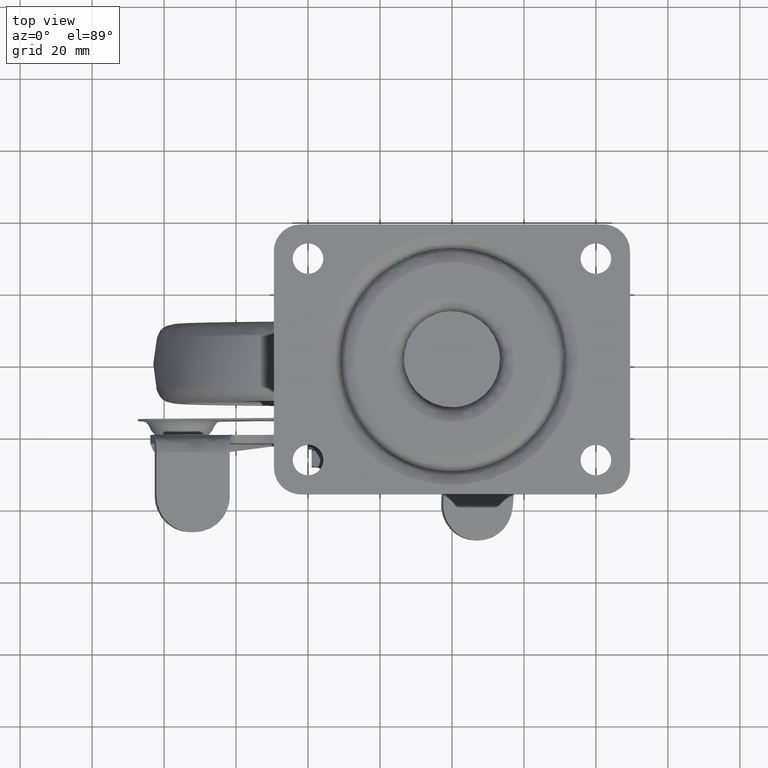
[diagram: clean part render]
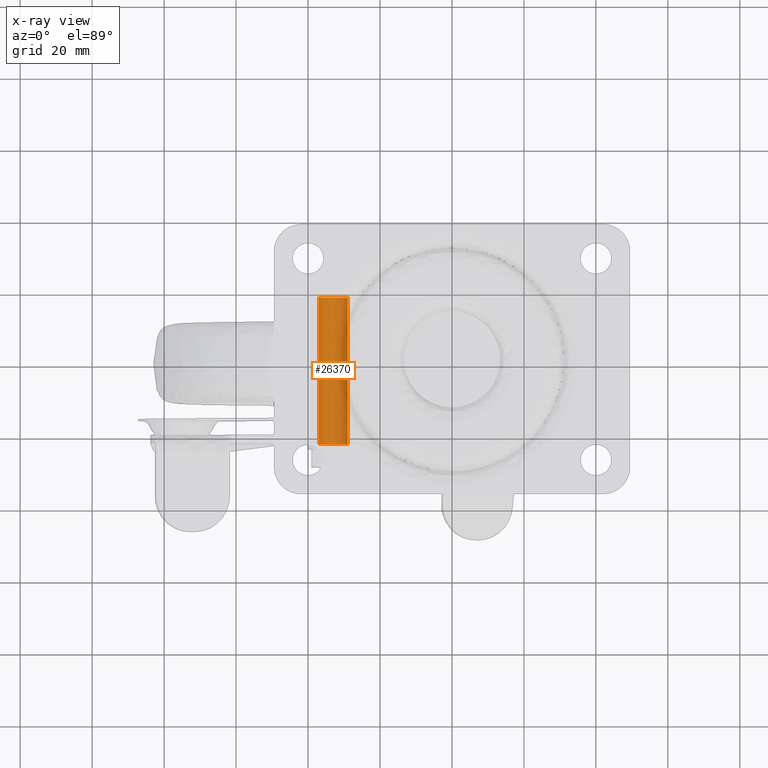
[diagram: x-ray — body ghosted, one internal face saturated and labeled with its STEP entity id]
A machine part, top view, then the same camera in x-ray: the body is ghosted and one INTERNAL B-rep face — a face not visible from any outside direction — is saturated and labeled: STEP entity #26370.
In plain terms, the highlighted face is a freeform B-spline surface patch.
Its self-contained STEP definition (entity closure, byte-faithful):
#26115=CARTESIAN_POINT('',(-32.999587000000091,18.417225999999999,-76.999581000000092));
#26116=VERTEX_POINT('',#26115);
#26117=CARTESIAN_POINT('',(-36.992126193677151,18.417225999999999,-73.243775158309617));
#26118=VERTEX_POINT('',#26117);
#26119=CARTESIAN_POINT('',(-32.999587000000091,18.417225999999999,-76.999581000000092));
#26120=CARTESIAN_POINT('',(-36.762411267462255,18.417226000000003,-76.999581000000092));
#26121=CARTESIAN_POINT('',(-36.992126193677159,18.417225999999999,-73.243775158309617));
#26129=(BOUNDED_CURVE()B_SPLINE_CURVE(2,(#26119,#26120,#26121),.UNSPECIFIED.,.F.,.U.)B_SPLINE_CURVE_WITH_KNOTS((3,3),(0.500000000000000,0.739332962234617),.UNSPECIFIED.)CURVE()GEOMETRIC_REPRESENTATION_ITEM()RATIONAL_B_SPLINE_CURVE((1.0,0.719603993291778,0.976072041657446))REPRESENTATION_ITEM(''));
#26130=EDGE_CURVE('',#26116,#26118,#26129,.T.);
#26149=CARTESIAN_POINT('',(-29.007047806323030,18.417225999999999,-72.755386841690566));
#26150=VERTEX_POINT('',#26149);
#26164=CARTESIAN_POINT('',(-29.007047806323030,18.417226000000007,-72.755386841690566));
#26165=CARTESIAN_POINT('',(-28.999587000000098,18.417225999999999,-72.877369946720449));
#26166=CARTESIAN_POINT('',(-28.999587000000091,18.417225999999999,-72.999581000000092));
#26167=CARTESIAN_POINT('',(-28.999587000000083,18.417226000000007,-76.999581000000092));
#26168=CARTESIAN_POINT('',(-32.999587000000091,18.417225999999999,-76.999581000000092));
#26176=(BOUNDED_CURVE()B_SPLINE_CURVE(2,(#26164,#26165,#26166,#26167,#26168),.UNSPECIFIED.,.F.,.U.)B_SPLINE_CURVE_WITH_KNOTS((3,2,3),(0.239332962234618,0.250000000000000,0.500000000000000),.UNSPECIFIED.)CURVE()GEOMETRIC_REPRESENTATION_ITEM()RATIONAL_B_SPLINE_CURVE((0.976072041657447,0.987502787894770,1.0,0.707106781186548,1.0))REPRESENTATION_ITEM(''));
#26177=EDGE_CURVE('',#26150,#26116,#26176,.T.);
#26304=CARTESIAN_POINT('',(-29.007047806312620,-23.317933725000000,-72.755386841860670));
#26305=CARTESIAN_POINT('',(-28.762853648173198,-23.317933724999996,-76.747926035548133));
#26306=CARTESIAN_POINT('',(-32.755392841860662,-23.317933725000000,-76.992120193687555));
#26307=CARTESIAN_POINT('',(-36.747932035548125,-23.317933724999996,-77.236314351826977));
#26308=CARTESIAN_POINT('',(-36.992126193687547,-23.317933725000000,-73.243775158139513));
#26309=CARTESIAN_POINT('',(-29.007047806312620,19.460604993124999,-72.755386841860670));
#26310=CARTESIAN_POINT('',(-28.762853648173198,19.460604993125006,-76.747926035548133));
#26311=CARTESIAN_POINT('',(-32.755392841860662,19.460604993124999,-76.992120193687555));
#26312=CARTESIAN_POINT('',(-36.747932035548125,19.460604993125006,-77.236314351826977));
#26313=CARTESIAN_POINT('',(-36.992126193687547,19.460604993124999,-73.243775158139513));
#26321=(BOUNDED_SURFACE()B_SPLINE_SURFACE(2,1,((#26304,#26309),(#26305,#26310),(#26306,#26311),(#26307,#26312),(#26308,#26313)),.UNSPECIFIED.,.F.,.F.,.U.)B_SPLINE_SURFACE_WITH_KNOTS((3,2,3),(2,2),(0.0,6.627416997969529,13.254833995939061),(0.0,42.778538718125013),.UNSPECIFIED.)GEOMETRIC_REPRESENTATION_ITEM()RATIONAL_B_SPLINE_SURFACE(((1.0,1.0),(0.707106781186548,0.707106781186548),(1.0,1.0),(0.707106781186548,0.707106781186548),(1.0,1.0)))REPRESENTATION_ITEM('')SURFACE());
#26322=ORIENTED_EDGE('',*,*,#26177,.F.);
#26323=CARTESIAN_POINT('',(-29.007047806323030,-22.300003000000000,-72.755386841690552));
#26324=VERTEX_POINT('',#26323);
#26325=CARTESIAN_POINT('',(-29.007047806323030,-22.300003000000000,-72.755386841690552));
#26326=CARTESIAN_POINT('',(-29.007047806323030,18.417225999999999,-72.755386841690566));
#26327=QUASI_UNIFORM_CURVE('',1,(#26325,#26326),.UNSPECIFIED.,.F.,.U.);
#26328=EDGE_CURVE('',#26324,#26150,#26327,.T.);
#26329=ORIENTED_EDGE('',*,*,#26328,.F.);
#26330=CARTESIAN_POINT('',(-32.999587000000091,-22.300003000000000,-76.999581000000092));
#26331=VERTEX_POINT('',#26330);
#26332=CARTESIAN_POINT('',(-29.007047806323037,-22.300003000000004,-72.755386841690566));
#26333=CARTESIAN_POINT('',(-28.999587000000094,-22.300003000000000,-72.877369946720449));
#26334=CARTESIAN_POINT('',(-28.999587000000091,-22.300003000000000,-72.999581000000092));
#26335=CARTESIAN_POINT('',(-28.999587000000083,-22.300003000000007,-76.999581000000092));
#26336=CARTESIAN_POINT('',(-32.999587000000091,-22.300003000000000,-76.999581000000092));
#26344=(BOUNDED_CURVE()B_SPLINE_CURVE(2,(#26332,#26333,#26334,#26335,#26336),.UNSPECIFIED.,.F.,.U.)B_SPLINE_CURVE_WITH_KNOTS((3,2,3),(0.239332962234617,0.250000000000000,0.500000000000000),.UNSPECIFIED.)CURVE()GEOMETRIC_REPRESENTATION_ITEM()RATIONAL_B_SPLINE_CURVE((0.976072041657446,0.987502787894769,1.0,0.707106781186548,1.0))REPRESENTATION_ITEM(''));
#26345=EDGE_CURVE('',#26324,#26331,#26344,.T.);
#26346=ORIENTED_EDGE('',*,*,#26345,.T.);
#26347=CARTESIAN_POINT('',(-36.992126193677159,-22.300003000000000,-73.243775158309631));
#26348=VERTEX_POINT('',#26347);
#26349=CARTESIAN_POINT('',(-32.999587000000091,-22.300003000000000,-76.999581000000092));
#26350=CARTESIAN_POINT('',(-36.762411267462248,-22.300002999999993,-76.999581000000092));
#26351=CARTESIAN_POINT('',(-36.992126193677166,-22.300003000000004,-73.243775158309646));
#26359=(BOUNDED_CURVE()B_SPLINE_CURVE(2,(#26349,#26350,#26351),.UNSPECIFIED.,.F.,.U.)B_SPLINE_CURVE_WITH_KNOTS((3,3),(0.500000000000000,0.739332962234616),.UNSPECIFIED.)CURVE()GEOMETRIC_REPRESENTATION_ITEM()RATIONAL_B_SPLINE_CURVE((1.0,0.719603993291779,0.976072041657445))REPRESENTATION_ITEM(''));
#26360=EDGE_CURVE('',#26331,#26348,#26359,.T.);
#26361=ORIENTED_EDGE('',*,*,#26360,.T.);
#26362=CARTESIAN_POINT('',(-36.992126193677159,-22.300003000000000,-73.243775158309631));
#26363=CARTESIAN_POINT('',(-36.992126193677151,18.417225999999999,-73.243775158309617));
#26364=QUASI_UNIFORM_CURVE('',1,(#26362,#26363),.UNSPECIFIED.,.F.,.U.);
#26365=EDGE_CURVE('',#26348,#26118,#26364,.T.);
#26366=ORIENTED_EDGE('',*,*,#26365,.T.);
#26367=ORIENTED_EDGE('',*,*,#26130,.F.);
#26368=EDGE_LOOP('',(#26322,#26329,#26346,#26361,#26366,#26367));
#26369=FACE_OUTER_BOUND('',#26368,.T.);
#26370=ADVANCED_FACE('',(#26369),#26321,.T.);